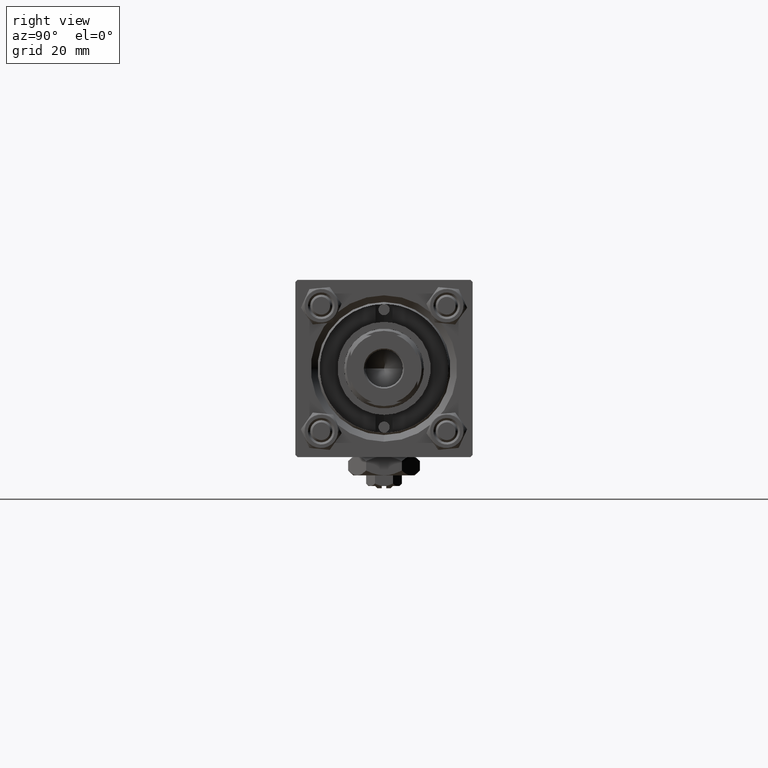
[diagram: clean part render]
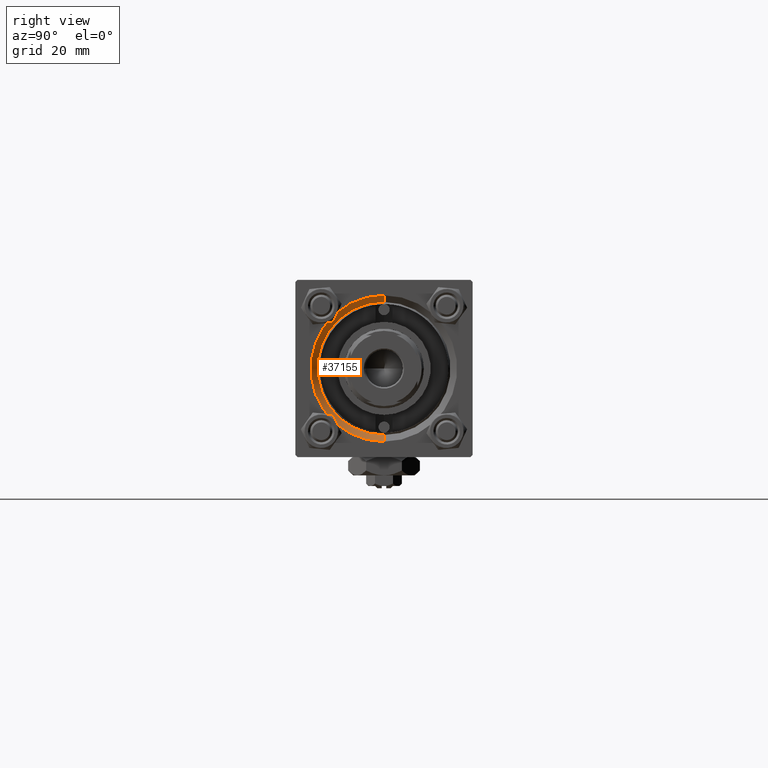
[diagram: same view with one face highlighted and labeled with its STEP entity id]
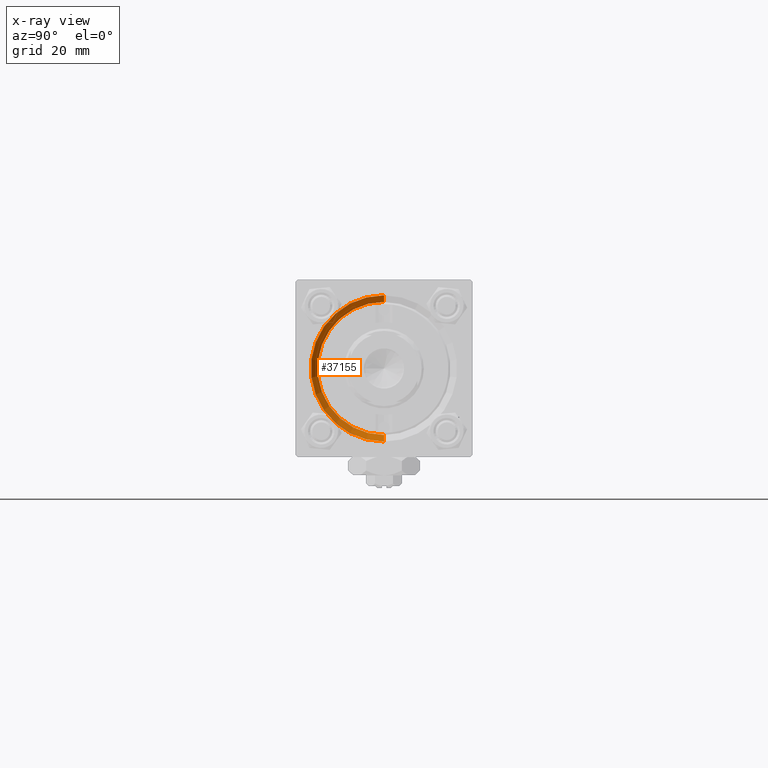
[diagram: x-ray of the same camera — body ghosted, the highlighted face saturated]
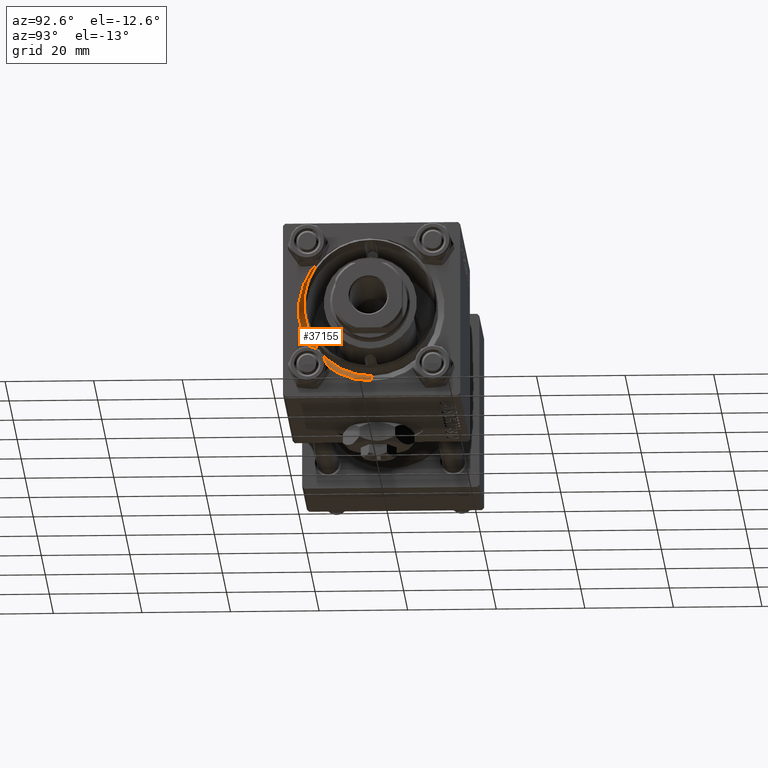
[diagram: same view with one face highlighted and labeled with its STEP entity id]
A machine part, right view. The second image highlights one B-rep face of the part: STEP entity #37155.
The next image is the same camera in x-ray: the body ghosted, the highlighted face saturated — about 0% of this face is hidden behind the body in this view.
A second angle (auxiliary view) of the same face is appended — the face is thin or edge-on in the first view.
In plain terms, the highlighted conical surface has half-angle 45 deg.
Its self-contained STEP definition (entity closure, byte-faithful):
#76 = EDGE_LOOP ( 'NONE', ( #45220, #25004, #39740, #41470 ) ) ;
#79 = EDGE_CURVE ( 'NONE', #37669, #17119, #50559, .T. ) ;
#1381 = CARTESIAN_POINT ( 'NONE',  ( 119.0000000000000142, 0.000000000000000000, -16.50000000000001421 ) ) ;
#1926 = DIRECTION ( 'NONE',  ( 0.000000000000000000, 0.000000000000000000, 1.000000000000000000 ) ) ;
#2340 = VECTOR ( 'NONE', #12142, 1000.000000000000114 ) ;
#6005 = CARTESIAN_POINT ( 'NONE',  ( 119.0000000000000142, 2.020667218593134678E-15, 16.50000000000001421 ) ) ;
#7022 = DIRECTION ( 'NONE',  ( 0.000000000000000000, 0.000000000000000000, 1.000000000000000000 ) ) ;
#9105 = EDGE_CURVE ( 'NONE', #10443, #37669, #17221, .T. ) ;
#9773 = DIRECTION ( 'NONE',  ( 1.000000000000000000, 0.000000000000000000, 0.000000000000000000 ) ) ;
#10443 = VERTEX_POINT ( 'NONE', #14663 ) ;
#11459 = DIRECTION ( 'NONE',  ( -1.000000000000000000, -0.000000000000000000, -0.000000000000000000 ) ) ;
#12135 = EDGE_CURVE ( 'NONE', #17119, #21061, #41333, .T. ) ;
#12142 = DIRECTION ( 'NONE',  ( 0.7071067811865474617, 8.659560562354932858E-17, 0.7071067811865474617 ) ) ;
#14663 = CARTESIAN_POINT ( 'NONE',  ( 117.5000000000000000, 1.836970198721029589E-15, 15.00000000000000000 ) ) ;
#15891 = AXIS2_PLACEMENT_3D ( 'NONE', #41014, #21706, #22236 ) ;
#17119 = VERTEX_POINT ( 'NONE', #1381 ) ;
#17221 = CIRCLE ( 'NONE', #45495, 15.00000000000000000 ) ;
#18487 = CARTESIAN_POINT ( 'NONE',  ( 117.5000000000000000, 0.000000000000000000, -15.00000000000000000 ) ) ;
#21061 = VERTEX_POINT ( 'NONE', #6005 ) ;
#21706 = DIRECTION ( 'NONE',  ( 1.000000000000000000, 0.000000000000000000, 0.000000000000000000 ) ) ;
#22236 = DIRECTION ( 'NONE',  ( 0.000000000000000000, 0.000000000000000000, -1.000000000000000000 ) ) ;
#25004 = ORIENTED_EDGE ( 'NONE', *, *, #30367, .T. ) ;
#25121 = FACE_OUTER_BOUND ( 'NONE', #76, .T. ) ;
#27203 = AXIS2_PLACEMENT_3D ( 'NONE', #43494, #11459, #7022 ) ;
#28278 = LINE ( 'NONE', #47841, #2340 ) ;
#30350 = CARTESIAN_POINT ( 'NONE',  ( 117.5000000000000000, 0.000000000000000000, 0.000000000000000000 ) ) ;
#30367 = EDGE_CURVE ( 'NONE', #10443, #21061, #28278, .T. ) ;
#35130 = CARTESIAN_POINT ( 'NONE',  ( 117.5000000000000000, 0.000000000000000000, -15.00000000000000000 ) ) ;
#37155 = ADVANCED_FACE ( 'NONE', ( #25121 ), #38356, .F. ) ;
#37669 = VERTEX_POINT ( 'NONE', #35130 ) ;
#38356 = CONICAL_SURFACE ( 'NONE', #15891, 15.00000000000000000, 0.7853981633974482790 ) ;
#39382 = VECTOR ( 'NONE', #42462, 1000.000000000000114 ) ;
#39740 = ORIENTED_EDGE ( 'NONE', *, *, #12135, .F. ) ;
#41014 = CARTESIAN_POINT ( 'NONE',  ( 117.5000000000000000, 0.000000000000000000, 0.000000000000000000 ) ) ;
#41333 = CIRCLE ( 'NONE', #27203, 16.50000000000001421 ) ;
#41470 = ORIENTED_EDGE ( 'NONE', *, *, #79, .F. ) ;
#42462 = DIRECTION ( 'NONE',  ( 0.7071067811865474617, 0.000000000000000000, -0.7071067811865474617 ) ) ;
#43494 = CARTESIAN_POINT ( 'NONE',  ( 119.0000000000000142, 0.000000000000000000, 0.000000000000000000 ) ) ;
#45220 = ORIENTED_EDGE ( 'NONE', *, *, #9105, .F. ) ;
#45495 = AXIS2_PLACEMENT_3D ( 'NONE', #30350, #9773, #1926 ) ;
#47841 = CARTESIAN_POINT ( 'NONE',  ( 117.5000000000000000, 1.836970198721029589E-15, 15.00000000000000000 ) ) ;
#50559 = LINE ( 'NONE', #18487, #39382 ) ;